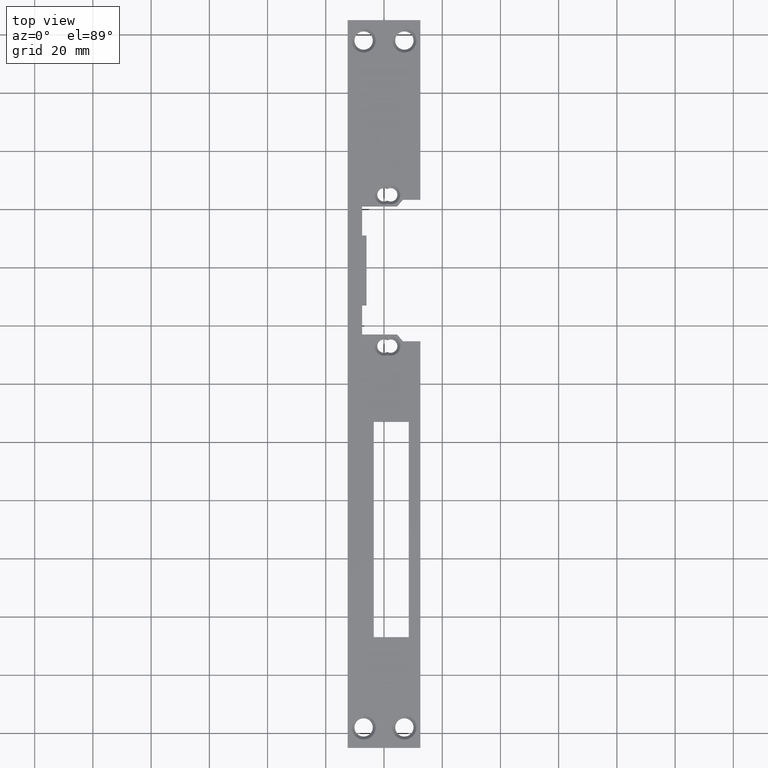
[diagram: clean part render]
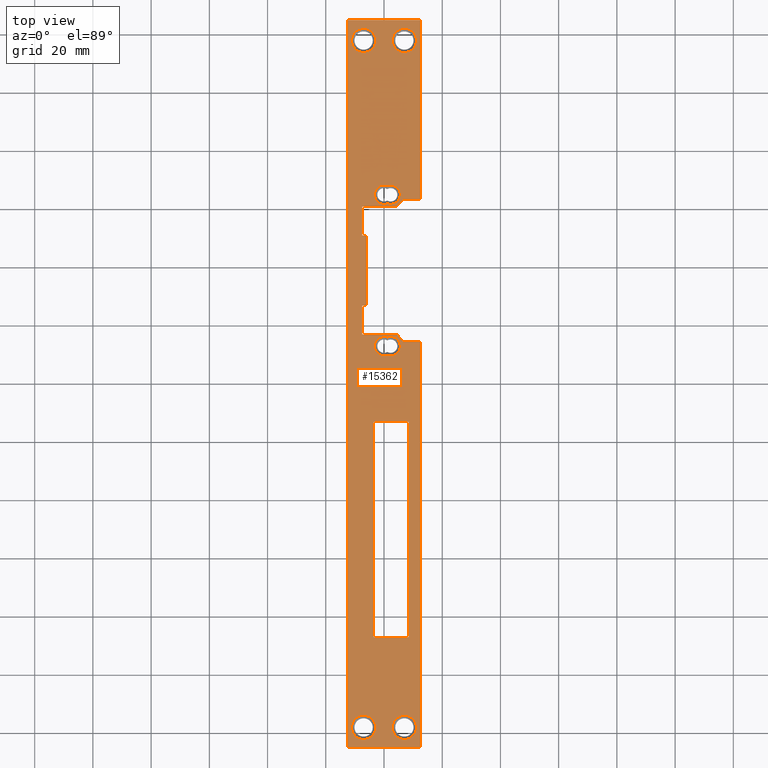
[diagram: same view with one face highlighted and labeled with its STEP entity id]
A machine part, top view. The second image highlights one B-rep face of the part: STEP entity #15362.
In plain terms, the highlighted planar face has unit normal (-0, 0, 1).
Its self-contained STEP definition (entity closure, byte-faithful):
#45 = VECTOR ( 'NONE', #15679, 1000.000000000000000 ) ;
#63 = ORIENTED_EDGE ( 'NONE', *, *, #1417, .F. ) ;
#214 = DIRECTION ( 'NONE',  ( 1.000000000000000000, 0.000000000000000000, 0.000000000000000000 ) ) ;
#242 = VERTEX_POINT ( 'NONE', #12705 ) ;
#277 = EDGE_CURVE ( 'NONE', #14139, #13764, #1704, .T. ) ;
#281 = EDGE_CURVE ( 'NONE', #6145, #14139, #935, .T. ) ;
#335 = EDGE_CURVE ( 'NONE', #14783, #13684, #7827, .T. ) ;
#388 = ORIENTED_EDGE ( 'NONE', *, *, #10455, .F. ) ;
#401 = CARTESIAN_POINT ( 'NONE',  ( -7.000000000000000000, -118.0000000000000000, 3.000000000000000000 ) ) ;
#411 = CARTESIAN_POINT ( 'NONE',  ( 4.500000000000031086, 16.99999999999996092, 3.000000000000000000 ) ) ;
#444 = CARTESIAN_POINT ( 'NONE',  ( -12.50000000000001599, 125.0000000000000000, 3.000000000000000000 ) ) ;
#484 = FACE_BOUND ( 'NONE', #6511, .T. ) ;
#505 = AXIS2_PLACEMENT_3D ( 'NONE', #8927, #1604, #11367 ) ;
#517 = CARTESIAN_POINT ( 'NONE',  ( 7.000000000000000000, -118.0000000000000000, 3.000000000000000000 ) ) ;
#518 = CARTESIAN_POINT ( 'NONE',  ( -7.500000000000023093, 60.99999999999996447, 3.000000000000000000 ) ) ;
#529 = ORIENTED_EDGE ( 'NONE', *, *, #335, .F. ) ;
#558 = EDGE_LOOP ( 'NONE', ( #8102, #13041, #14520 ) ) ;
#645 = CARTESIAN_POINT ( 'NONE',  ( 12.50000000000001599, -125.0000000000000284, 3.000000000000000000 ) ) ;
#650 = DIRECTION ( 'NONE',  ( 0.6481186295283569709, -0.7615393896958214670, 0.000000000000000000 ) ) ;
#764 = ORIENTED_EDGE ( 'NONE', *, *, #6211, .F. ) ;
#935 = CIRCLE ( 'NONE', #14532, 3.299999999999998046 ) ;
#963 = VECTOR ( 'NONE', #5611, 1000.000000000000000 ) ;
#1148 = DIRECTION ( 'NONE',  ( 1.000000000000000000, 0.000000000000000000, 0.000000000000000000 ) ) ;
#1181 = EDGE_CURVE ( 'NONE', #15734, #10715, #1321, .T. ) ;
#1183 = CARTESIAN_POINT ( 'NONE',  ( 12.49999999999998579, 125.0000000000000000, 3.000000000000000000 ) ) ;
#1191 = DIRECTION ( 'NONE',  ( -1.000000000000000000, -0.000000000000000000, -0.000000000000000000 ) ) ;
#1215 = DIRECTION ( 'NONE',  ( 0.000000000000000000, -0.000000000000000000, -1.000000000000000000 ) ) ;
#1321 = CIRCLE ( 'NONE', #10959, 4.150000000000013678 ) ;
#1417 = EDGE_CURVE ( 'NONE', #10002, #242, #13547, .T. ) ;
#1487 = EDGE_CURVE ( 'NONE', #11190, #4401, #2446, .T. ) ;
#1502 = CIRCLE ( 'NONE', #13837, 3.299999999999993161 ) ;
#1509 = EDGE_LOOP ( 'NONE', ( #9093, #4364, #12487, #8478, #3359, #4263, #6717, #9859, #9614, #63, #7880, #1585, #529, #388, #10326, #15286 ) ) ;
#1540 = DIRECTION ( 'NONE',  ( 0.000000000000000000, -0.000000000000000000, -1.000000000000000000 ) ) ;
#1585 = ORIENTED_EDGE ( 'NONE', *, *, #4452, .F. ) ;
#1604 = DIRECTION ( 'NONE',  ( 0.000000000000000000, -0.000000000000000000, -1.000000000000000000 ) ) ;
#1640 = DIRECTION ( 'NONE',  ( 1.000000000000000000, 0.000000000000000000, 0.000000000000000000 ) ) ;
#1647 = CIRCLE ( 'NONE', #13012, 4.150000000000013678 ) ;
#1704 = CIRCLE ( 'NONE', #5740, 3.299999999999998046 ) ;
#1788 = EDGE_CURVE ( 'NONE', #4420, #11190, #7795, .T. ) ;
#1794 = EDGE_CURVE ( 'NONE', #13764, #6145, #1502, .T. ) ;
#1833 = ORIENTED_EDGE ( 'NONE', *, *, #9348, .F. ) ;
#1859 = CARTESIAN_POINT ( 'NONE',  ( -3.499999999999977796, -87.00000000000002842, 3.000000000000000000 ) ) ;
#1877 = CARTESIAN_POINT ( 'NONE',  ( -12.50000000000001599, 125.0000000000000000, 3.000000000000000000 ) ) ;
#1897 = AXIS2_PLACEMENT_3D ( 'NONE', #11274, #7459, #2694 ) ;
#1974 = VERTEX_POINT ( 'NONE', #14996 ) ;
#2095 = CARTESIAN_POINT ( 'NONE',  ( 1.149999999999984812, 9.906862434355664604, 3.000000000000000000 ) ) ;
#2108 = CARTESIAN_POINT ( 'NONE',  ( 8.500000000000024869, -87.00000000000002842, 3.000000000000000000 ) ) ;
#2137 = EDGE_LOOP ( 'NONE', ( #12538, #14368 ) ) ;
#2143 = CARTESIAN_POINT ( 'NONE',  ( 1.149999999999976819, 68.09313756564426967, 3.000000000000000000 ) ) ;
#2280 = VERTEX_POINT ( 'NONE', #3303 ) ;
#2288 = ORIENTED_EDGE ( 'NONE', *, *, #4805, .T. ) ;
#2357 = VERTEX_POINT ( 'NONE', #12650 ) ;
#2446 = LINE ( 'NONE', #13386, #3594 ) ;
#2594 = CARTESIAN_POINT ( 'NONE',  ( 7.000000000000000000, -118.0000000000000000, 3.000000000000000000 ) ) ;
#2612 = LINE ( 'NONE', #5019, #3759 ) ;
#2687 = CARTESIAN_POINT ( 'NONE',  ( 8.500000000000015987, -13.00000000000003375, 3.000000000000000000 ) ) ;
#2694 = DIRECTION ( 'NONE',  ( 1.000000000000000000, 0.000000000000000000, 0.000000000000000000 ) ) ;
#2725 = LINE ( 'NONE', #4785, #45 ) ;
#2815 = DIRECTION ( 'NONE',  ( -1.000000000000000000, -0.000000000000000000, -0.000000000000000000 ) ) ;
#2888 = LINE ( 'NONE', #518, #963 ) ;
#2967 = DIRECTION ( 'NONE',  ( 1.000000000000000000, 0.000000000000000000, 0.000000000000000000 ) ) ;
#3217 = CARTESIAN_POINT ( 'NONE',  ( 5.599999999999981881, 12.99999999999996980, 3.000000000000000000 ) ) ;
#3303 = CARTESIAN_POINT ( 'NONE',  ( -7.500000000000023093, 60.99999999999996447, 3.000000000000000000 ) ) ;
#3359 = ORIENTED_EDGE ( 'NONE', *, *, #1487, .T. ) ;
#3362 = LINE ( 'NONE', #444, #9098 ) ;
#3377 = VECTOR ( 'NONE', #13202, 1000.000000000000000 ) ;
#3519 = VERTEX_POINT ( 'NONE', #11603 ) ;
#3594 = VECTOR ( 'NONE', #9591, 1000.000000000000000 ) ;
#3759 = VECTOR ( 'NONE', #9818, 1000.000000000000000 ) ;
#3863 = ORIENTED_EDGE ( 'NONE', *, *, #10928, .T. ) ;
#3899 = AXIS2_PLACEMENT_3D ( 'NONE', #5388, #14347, #7370 ) ;
#3909 = VERTEX_POINT ( 'NONE', #13466 ) ;
#3923 = DIRECTION ( 'NONE',  ( 1.000000000000000000, 0.000000000000000000, 0.000000000000000000 ) ) ;
#3971 = DIRECTION ( 'NONE',  ( 0.000000000000000000, -0.000000000000000000, -1.000000000000000000 ) ) ;
#4033 = LINE ( 'NONE', #14578, #4588 ) ;
#4124 = FACE_BOUND ( 'NONE', #2137, .T. ) ;
#4263 = ORIENTED_EDGE ( 'NONE', *, *, #12846, .T. ) ;
#4316 = CARTESIAN_POINT ( 'NONE',  ( -12.49999999999998579, -125.0000000000000284, 3.000000000000000000 ) ) ;
#4358 = CARTESIAN_POINT ( 'NONE',  ( 12.50000000000001776, 14.64999999999996838, 3.000000000000000000 ) ) ;
#4364 = ORIENTED_EDGE ( 'NONE', *, *, #4769, .T. ) ;
#4401 = VERTEX_POINT ( 'NONE', #645 ) ;
#4420 = VERTEX_POINT ( 'NONE', #1877 ) ;
#4452 = EDGE_CURVE ( 'NONE', #13684, #3519, #11044, .T. ) ;
#4498 = FACE_BOUND ( 'NONE', #14557, .T. ) ;
#4502 = CARTESIAN_POINT ( 'NONE',  ( 2.299999999999985167, 12.99999999999996980, 3.000000000000000000 ) ) ;
#4545 = EDGE_CURVE ( 'NONE', #10158, #9012, #13343, .T. ) ;
#4588 = VECTOR ( 'NONE', #7047, 1000.000000000000000 ) ;
#4698 = FACE_BOUND ( 'NONE', #12329, .T. ) ;
#4769 = EDGE_CURVE ( 'NONE', #8608, #11313, #7022, .T. ) ;
#4785 = CARTESIAN_POINT ( 'NONE',  ( -7.500000000000008882, 16.99999999999996803, 3.000000000000000000 ) ) ;
#4791 = CIRCLE ( 'NONE', #7274, 4.150000000000013678 ) ;
#4805 = EDGE_CURVE ( 'NONE', #9012, #10090, #11238, .T. ) ;
#4886 = EDGE_LOOP ( 'NONE', ( #7346, #3863 ) ) ;
#4953 = DIRECTION ( 'NONE',  ( -1.000000000000000000, 0.000000000000000000, 0.000000000000000000 ) ) ;
#5001 = DIRECTION ( 'NONE',  ( 1.000000000000000000, 0.000000000000000000, 0.000000000000000000 ) ) ;
#5011 = VERTEX_POINT ( 'NONE', #2108 ) ;
#5017 = ORIENTED_EDGE ( 'NONE', *, *, #6088, .F. ) ;
#5019 = CARTESIAN_POINT ( 'NONE',  ( 12.50000000000001776, 63.34999999999995879, 3.000000000000000000 ) ) ;
#5081 = CARTESIAN_POINT ( 'NONE',  ( 4.500000000000016875, 60.99999999999997868, 3.000000000000000000 ) ) ;
#5090 = FACE_BOUND ( 'NONE', #5362, .T. ) ;
#5106 = LINE ( 'NONE', #10842, #3377 ) ;
#5155 = CARTESIAN_POINT ( 'NONE',  ( -1.561251128379126385E-14, 64.99999999999995737, 3.000000000000000000 ) ) ;
#5272 = CARTESIAN_POINT ( 'NONE',  ( -7.500000000000016875, 50.99999999999996447, 3.000000000000000000 ) ) ;
#5341 = AXIS2_PLACEMENT_3D ( 'NONE', #7477, #14823, #8805 ) ;
#5362 = EDGE_LOOP ( 'NONE', ( #9555, #15762 ) ) ;
#5380 = VERTEX_POINT ( 'NONE', #9203 ) ;
#5388 = CARTESIAN_POINT ( 'NONE',  ( 7.000000000000000000, 118.0000000000000000, 3.000000000000000000 ) ) ;
#5462 = CARTESIAN_POINT ( 'NONE',  ( -11.15000000000001457, 118.0000000000000000, 3.000000000000000000 ) ) ;
#5611 = DIRECTION ( 'NONE',  ( 6.071532165918823844E-16, -1.000000000000000000, 0.000000000000000000 ) ) ;
#5639 = VERTEX_POINT ( 'NONE', #2687 ) ;
#5716 = CARTESIAN_POINT ( 'NONE',  ( 12.49999999999998579, 125.0000000000000000, 3.000000000000000000 ) ) ;
#5740 = AXIS2_PLACEMENT_3D ( 'NONE', #6612, #11463, #6513 ) ;
#5749 = DIRECTION ( 'NONE',  ( 0.000000000000000000, -0.000000000000000000, -1.000000000000000000 ) ) ;
#5750 = VECTOR ( 'NONE', #15023, 1000.000000000000000 ) ;
#5885 = CIRCLE ( 'NONE', #505, 4.150000000000013678 ) ;
#5991 = DIRECTION ( 'NONE',  ( -1.249000902703301108E-16, 1.000000000000000000, -0.000000000000000000 ) ) ;
#6088 = EDGE_CURVE ( 'NONE', #5011, #5639, #5106, .T. ) ;
#6135 = CIRCLE ( 'NONE', #11447, 4.150000000000015454 ) ;
#6145 = VERTEX_POINT ( 'NONE', #2143 ) ;
#6181 = DIRECTION ( 'NONE',  ( 1.000000000000000000, 0.000000000000000000, 0.000000000000000000 ) ) ;
#6211 = EDGE_CURVE ( 'NONE', #5639, #7514, #9285, .T. ) ;
#6319 = CARTESIAN_POINT ( 'NONE',  ( -3.499999999999977796, -87.00000000000002842, 3.000000000000000000 ) ) ;
#6511 = EDGE_LOOP ( 'NONE', ( #2288, #15339, #13046 ) ) ;
#6513 = DIRECTION ( 'NONE',  ( 1.000000000000000000, 0.000000000000000000, 0.000000000000000000 ) ) ;
#6609 = CARTESIAN_POINT ( 'NONE',  ( -7.000000000000000000, 118.0000000000000000, 3.000000000000000000 ) ) ;
#6612 = CARTESIAN_POINT ( 'NONE',  ( 2.299999999999985167, 64.99999999999995737, 3.000000000000000000 ) ) ;
#6626 = EDGE_CURVE ( 'NONE', #8608, #15139, #2612, .T. ) ;
#6712 = EDGE_CURVE ( 'NONE', #11313, #4420, #3362, .T. ) ;
#6717 = ORIENTED_EDGE ( 'NONE', *, *, #9253, .F. ) ;
#6811 = CARTESIAN_POINT ( 'NONE',  ( 6.500000000000017764, 63.34999999999995879, 3.000000000000000000 ) ) ;
#6836 = AXIS2_PLACEMENT_3D ( 'NONE', #517, #12617, #13938 ) ;
#6878 = DIRECTION ( 'NONE',  ( 0.000000000000000000, -0.000000000000000000, -1.000000000000000000 ) ) ;
#6995 = CIRCLE ( 'NONE', #14652, 3.299999999999996714 ) ;
#7022 = LINE ( 'NONE', #1183, #8584 ) ;
#7047 = DIRECTION ( 'NONE',  ( 1.000000000000000000, 0.000000000000000000, 0.000000000000000000 ) ) ;
#7186 = CARTESIAN_POINT ( 'NONE',  ( 2.299999999999985167, 12.99999999999996980, 3.000000000000000000 ) ) ;
#7208 = EDGE_CURVE ( 'NONE', #1974, #2357, #14230, .T. ) ;
#7213 = EDGE_CURVE ( 'NONE', #7514, #7488, #15386, .T. ) ;
#7263 = LINE ( 'NONE', #9302, #14124 ) ;
#7274 = AXIS2_PLACEMENT_3D ( 'NONE', #14541, #8480, #1148 ) ;
#7346 = ORIENTED_EDGE ( 'NONE', *, *, #1181, .T. ) ;
#7358 = DIRECTION ( 'NONE',  ( 1.249000902703301108E-16, -1.000000000000000000, 0.000000000000000000 ) ) ;
#7370 = DIRECTION ( 'NONE',  ( 1.000000000000000000, 0.000000000000000000, 0.000000000000000000 ) ) ;
#7455 = EDGE_CURVE ( 'NONE', #15139, #14530, #15082, .T. ) ;
#7459 = DIRECTION ( 'NONE',  ( 0.000000000000000000, -0.000000000000000000, -1.000000000000000000 ) ) ;
#7477 = CARTESIAN_POINT ( 'NONE',  ( 0.000000000000000000, 0.000000000000000000, 3.000000000000000000 ) ) ;
#7488 = VERTEX_POINT ( 'NONE', #1859 ) ;
#7514 = VERTEX_POINT ( 'NONE', #9445 ) ;
#7795 = LINE ( 'NONE', #14657, #13532 ) ;
#7805 = DIRECTION ( 'NONE',  ( 7.453889935837844216E-17, -1.000000000000000000, 0.000000000000000000 ) ) ;
#7827 = LINE ( 'NONE', #5272, #8403 ) ;
#7837 = DIRECTION ( 'NONE',  ( 1.000000000000000000, 0.000000000000000000, 0.000000000000000000 ) ) ;
#7880 = ORIENTED_EDGE ( 'NONE', *, *, #9777, .F. ) ;
#7894 = CARTESIAN_POINT ( 'NONE',  ( -7.500000000000009770, 26.99999999999996803, 3.000000000000000000 ) ) ;
#8099 = CARTESIAN_POINT ( 'NONE',  ( -7.500000000000009770, 26.99999999999996803, 3.000000000000000000 ) ) ;
#8102 = ORIENTED_EDGE ( 'NONE', *, *, #1794, .T. ) ;
#8403 = VECTOR ( 'NONE', #13823, 1000.000000000000000 ) ;
#8478 = ORIENTED_EDGE ( 'NONE', *, *, #1788, .T. ) ;
#8480 = DIRECTION ( 'NONE',  ( 0.000000000000000000, -0.000000000000000000, -1.000000000000000000 ) ) ;
#8521 = CARTESIAN_POINT ( 'NONE',  ( -3.499999999999982681, -13.00000000000003375, 3.000000000000000000 ) ) ;
#8584 = VECTOR ( 'NONE', #5991, 1000.000000000000000 ) ;
#8608 = VERTEX_POINT ( 'NONE', #15475 ) ;
#8635 = LINE ( 'NONE', #6319, #10322 ) ;
#8674 = VERTEX_POINT ( 'NONE', #4358 ) ;
#8731 = CARTESIAN_POINT ( 'NONE',  ( -2.849999999999986322, -118.0000000000000000, 3.000000000000000000 ) ) ;
#8740 = CARTESIAN_POINT ( 'NONE',  ( 4.500000000000016875, 60.99999999999997868, 3.000000000000000000 ) ) ;
#8789 = VECTOR ( 'NONE', #9136, 1000.000000000000000 ) ;
#8805 = DIRECTION ( 'NONE',  ( 1.000000000000000000, 0.000000000000000000, 0.000000000000000000 ) ) ;
#8927 = CARTESIAN_POINT ( 'NONE',  ( -7.000000000000000000, 118.0000000000000000, 3.000000000000000000 ) ) ;
#8962 = EDGE_CURVE ( 'NONE', #14530, #2280, #15487, .T. ) ;
#9012 = VERTEX_POINT ( 'NONE', #11223 ) ;
#9093 = ORIENTED_EDGE ( 'NONE', *, *, #6626, .F. ) ;
#9098 = VECTOR ( 'NONE', #2815, 1000.000000000000000 ) ;
#9136 = DIRECTION ( 'NONE',  ( -1.249000902703301108E-16, 1.000000000000000000, -0.000000000000000000 ) ) ;
#9203 = CARTESIAN_POINT ( 'NONE',  ( 11.15000000000001457, 118.0000000000000000, 3.000000000000000000 ) ) ;
#9217 = CARTESIAN_POINT ( 'NONE',  ( -11.15000000000001457, -118.0000000000000000, 3.000000000000000000 ) ) ;
#9253 = EDGE_CURVE ( 'NONE', #10365, #8674, #4033, .T. ) ;
#9285 = LINE ( 'NONE', #8521, #14646 ) ;
#9302 = CARTESIAN_POINT ( 'NONE',  ( 4.500000000000031086, 16.99999999999996092, 3.000000000000000000 ) ) ;
#9348 = EDGE_CURVE ( 'NONE', #7488, #5011, #8635, .T. ) ;
#9445 = CARTESIAN_POINT ( 'NONE',  ( -3.499999999999982681, -13.00000000000003375, 3.000000000000000000 ) ) ;
#9555 = ORIENTED_EDGE ( 'NONE', *, *, #13265, .T. ) ;
#9591 = DIRECTION ( 'NONE',  ( 1.000000000000000000, 0.000000000000000000, 0.000000000000000000 ) ) ;
#9614 = ORIENTED_EDGE ( 'NONE', *, *, #13989, .F. ) ;
#9777 = EDGE_CURVE ( 'NONE', #3519, #10002, #11296, .T. ) ;
#9818 = DIRECTION ( 'NONE',  ( -1.000000000000000000, 0.000000000000000000, 0.000000000000000000 ) ) ;
#9826 = ORIENTED_EDGE ( 'NONE', *, *, #10987, .T. ) ;
#9859 = ORIENTED_EDGE ( 'NONE', *, *, #11937, .F. ) ;
#9976 = VERTEX_POINT ( 'NONE', #5462 ) ;
#10002 = VERTEX_POINT ( 'NONE', #8099 ) ;
#10090 = VERTEX_POINT ( 'NONE', #3217 ) ;
#10158 = VERTEX_POINT ( 'NONE', #2095 ) ;
#10225 = AXIS2_PLACEMENT_3D ( 'NONE', #2594, #14816, #5001 ) ;
#10275 = VECTOR ( 'NONE', #15194, 1000.000000000000000 ) ;
#10283 = CARTESIAN_POINT ( 'NONE',  ( 2.299999999999985167, 64.99999999999995737, 3.000000000000000000 ) ) ;
#10322 = VECTOR ( 'NONE', #214, 1000.000000000000000 ) ;
#10326 = ORIENTED_EDGE ( 'NONE', *, *, #8962, .F. ) ;
#10365 = VERTEX_POINT ( 'NONE', #11221 ) ;
#10455 = EDGE_CURVE ( 'NONE', #2280, #14783, #2888, .T. ) ;
#10661 = DIRECTION ( 'NONE',  ( -0.6481186295283607457, -0.7615393896958182474, 0.000000000000000000 ) ) ;
#10715 = VERTEX_POINT ( 'NONE', #9217 ) ;
#10842 = CARTESIAN_POINT ( 'NONE',  ( 8.500000000000017764, -23.00000000000003553, 3.000000000000000000 ) ) ;
#10928 = EDGE_CURVE ( 'NONE', #10715, #15734, #4791, .T. ) ;
#10959 = AXIS2_PLACEMENT_3D ( 'NONE', #401, #1540, #1640 ) ;
#10987 = EDGE_CURVE ( 'NONE', #14206, #5380, #6135, .T. ) ;
#11016 = EDGE_CURVE ( 'NONE', #2357, #1974, #11276, .T. ) ;
#11026 = CARTESIAN_POINT ( 'NONE',  ( 2.849999999999985434, 118.0000000000000000, 3.000000000000000000 ) ) ;
#11044 = LINE ( 'NONE', #15603, #15055 ) ;
#11190 = VERTEX_POINT ( 'NONE', #4316 ) ;
#11221 = CARTESIAN_POINT ( 'NONE',  ( 6.500000000000017764, 14.64999999999996838, 3.000000000000000000 ) ) ;
#11223 = CARTESIAN_POINT ( 'NONE',  ( 1.149999999999984812, 16.09313756564427322, 3.000000000000000000 ) ) ;
#11238 = CIRCLE ( 'NONE', #11729, 3.299999999999996714 ) ;
#11274 = CARTESIAN_POINT ( 'NONE',  ( -1.561251128379126385E-14, 12.99999999999996980, 3.000000000000000000 ) ) ;
#11276 = CIRCLE ( 'NONE', #10225, 4.150000000000015454 ) ;
#11296 = LINE ( 'NONE', #12225, #15508 ) ;
#11313 = VERTEX_POINT ( 'NONE', #5716 ) ;
#11367 = DIRECTION ( 'NONE',  ( 1.000000000000000000, 0.000000000000000000, 0.000000000000000000 ) ) ;
#11384 = CARTESIAN_POINT ( 'NONE',  ( 12.49999999999998579, 125.0000000000000000, 3.000000000000000000 ) ) ;
#11447 = AXIS2_PLACEMENT_3D ( 'NONE', #12269, #13489, #6181 ) ;
#11449 = CIRCLE ( 'NONE', #3899, 4.150000000000015454 ) ;
#11463 = DIRECTION ( 'NONE',  ( 0.000000000000000000, -0.000000000000000000, -1.000000000000000000 ) ) ;
#11479 = CARTESIAN_POINT ( 'NONE',  ( -3.499999999999982681, -23.00000000000003553, 3.000000000000000000 ) ) ;
#11538 = VERTEX_POINT ( 'NONE', #411 ) ;
#11603 = CARTESIAN_POINT ( 'NONE',  ( -6.000000000000011546, 26.99999999999996803, 3.000000000000000000 ) ) ;
#11729 = AXIS2_PLACEMENT_3D ( 'NONE', #4502, #5749, #14281 ) ;
#11836 = VECTOR ( 'NONE', #10661, 1000.000000000000114 ) ;
#11874 = DIRECTION ( 'NONE',  ( 2.891205793294679312E-16, -1.000000000000000000, 0.000000000000000000 ) ) ;
#11937 = EDGE_CURVE ( 'NONE', #11538, #10365, #7263, .T. ) ;
#11966 = FACE_OUTER_BOUND ( 'NONE', #1509, .T. ) ;
#12022 = LINE ( 'NONE', #11384, #8789 ) ;
#12225 = CARTESIAN_POINT ( 'NONE',  ( -6.000000000000011546, 26.99999999999996803, 3.000000000000000000 ) ) ;
#12269 = CARTESIAN_POINT ( 'NONE',  ( 7.000000000000000000, 118.0000000000000000, 3.000000000000000000 ) ) ;
#12329 = EDGE_LOOP ( 'NONE', ( #14244, #764, #5017, #1833 ) ) ;
#12375 = EDGE_CURVE ( 'NONE', #5380, #14206, #11449, .T. ) ;
#12487 = ORIENTED_EDGE ( 'NONE', *, *, #6712, .T. ) ;
#12538 = ORIENTED_EDGE ( 'NONE', *, *, #7208, .T. ) ;
#12617 = DIRECTION ( 'NONE',  ( 0.000000000000000000, -0.000000000000000000, -1.000000000000000000 ) ) ;
#12650 = CARTESIAN_POINT ( 'NONE',  ( 2.849999999999985434, -118.0000000000000000, 3.000000000000000000 ) ) ;
#12705 = CARTESIAN_POINT ( 'NONE',  ( -7.500000000000008882, 16.99999999999996803, 3.000000000000000000 ) ) ;
#12735 = FACE_BOUND ( 'NONE', #558, .T. ) ;
#12846 = EDGE_CURVE ( 'NONE', #4401, #8674, #12022, .T. ) ;
#12920 = CARTESIAN_POINT ( 'NONE',  ( 6.500000000000017764, 63.34999999999995879, 3.000000000000000000 ) ) ;
#13012 = AXIS2_PLACEMENT_3D ( 'NONE', #6609, #15146, #7837 ) ;
#13024 = CARTESIAN_POINT ( 'NONE',  ( -7.500000000000016875, 50.99999999999996447, 3.000000000000000000 ) ) ;
#13041 = ORIENTED_EDGE ( 'NONE', *, *, #281, .T. ) ;
#13046 = ORIENTED_EDGE ( 'NONE', *, *, #4545, .T. ) ;
#13202 = DIRECTION ( 'NONE',  ( -1.084202172485504681E-16, 1.000000000000000000, -0.000000000000000000 ) ) ;
#13237 = CARTESIAN_POINT ( 'NONE',  ( -6.000000000000018652, 50.99999999999996447, 3.000000000000000000 ) ) ;
#13265 = EDGE_CURVE ( 'NONE', #3909, #9976, #5885, .T. ) ;
#13343 = CIRCLE ( 'NONE', #1897, 3.299999999999997158 ) ;
#13386 = CARTESIAN_POINT ( 'NONE',  ( -12.49999999999998579, -125.0000000000000284, 3.000000000000000000 ) ) ;
#13466 = CARTESIAN_POINT ( 'NONE',  ( -2.849999999999986322, 118.0000000000000000, 3.000000000000000000 ) ) ;
#13489 = DIRECTION ( 'NONE',  ( 0.000000000000000000, -0.000000000000000000, -1.000000000000000000 ) ) ;
#13532 = VECTOR ( 'NONE', #7358, 1000.000000000000000 ) ;
#13542 = PLANE ( 'NONE',  #5341 ) ;
#13547 = LINE ( 'NONE', #7894, #10275 ) ;
#13617 = CARTESIAN_POINT ( 'NONE',  ( 1.149999999999977041, 61.90686243435565217, 3.000000000000000000 ) ) ;
#13658 = ORIENTED_EDGE ( 'NONE', *, *, #12375, .T. ) ;
#13684 = VERTEX_POINT ( 'NONE', #13237 ) ;
#13764 = VERTEX_POINT ( 'NONE', #13617 ) ;
#13823 = DIRECTION ( 'NONE',  ( 1.000000000000000000, 0.000000000000000000, 0.000000000000000000 ) ) ;
#13837 = AXIS2_PLACEMENT_3D ( 'NONE', #5155, #3971, #3923 ) ;
#13938 = DIRECTION ( 'NONE',  ( 1.000000000000000000, 0.000000000000000000, 0.000000000000000000 ) ) ;
#13989 = EDGE_CURVE ( 'NONE', #242, #11538, #2725, .T. ) ;
#14056 = FACE_BOUND ( 'NONE', #4886, .T. ) ;
#14124 = VECTOR ( 'NONE', #650, 1000.000000000000227 ) ;
#14139 = VERTEX_POINT ( 'NONE', #14773 ) ;
#14206 = VERTEX_POINT ( 'NONE', #11026 ) ;
#14230 = CIRCLE ( 'NONE', #6836, 4.150000000000015454 ) ;
#14244 = ORIENTED_EDGE ( 'NONE', *, *, #7213, .F. ) ;
#14281 = DIRECTION ( 'NONE',  ( 1.000000000000000000, 1.051347561198065993E-15, 0.000000000000000000 ) ) ;
#14347 = DIRECTION ( 'NONE',  ( 0.000000000000000000, -0.000000000000000000, -1.000000000000000000 ) ) ;
#14368 = ORIENTED_EDGE ( 'NONE', *, *, #11016, .T. ) ;
#14520 = ORIENTED_EDGE ( 'NONE', *, *, #277, .T. ) ;
#14530 = VERTEX_POINT ( 'NONE', #5081 ) ;
#14532 = AXIS2_PLACEMENT_3D ( 'NONE', #10283, #6878, #2967 ) ;
#14541 = CARTESIAN_POINT ( 'NONE',  ( -7.000000000000000000, -118.0000000000000000, 3.000000000000000000 ) ) ;
#14557 = EDGE_LOOP ( 'NONE', ( #13658, #9826 ) ) ;
#14578 = CARTESIAN_POINT ( 'NONE',  ( 6.500000000000017764, 14.64999999999996838, 3.000000000000000000 ) ) ;
#14646 = VECTOR ( 'NONE', #1191, 1000.000000000000000 ) ;
#14652 = AXIS2_PLACEMENT_3D ( 'NONE', #7186, #1215, #14719 ) ;
#14657 = CARTESIAN_POINT ( 'NONE',  ( -12.50000000000001599, 125.0000000000000000, 3.000000000000000000 ) ) ;
#14719 = DIRECTION ( 'NONE',  ( 1.000000000000000000, 0.000000000000000000, 0.000000000000000000 ) ) ;
#14773 = CARTESIAN_POINT ( 'NONE',  ( 5.599999999999981881, 64.99999999999995737, 3.000000000000000000 ) ) ;
#14783 = VERTEX_POINT ( 'NONE', #13024 ) ;
#14816 = DIRECTION ( 'NONE',  ( 0.000000000000000000, -0.000000000000000000, -1.000000000000000000 ) ) ;
#14823 = DIRECTION ( 'NONE',  ( -0.000000000000000000, 0.000000000000000000, 1.000000000000000000 ) ) ;
#14996 = CARTESIAN_POINT ( 'NONE',  ( 11.15000000000001457, -118.0000000000000000, 3.000000000000000000 ) ) ;
#15018 = VECTOR ( 'NONE', #7805, 1000.000000000000000 ) ;
#15023 = DIRECTION ( 'NONE',  ( -1.000000000000000000, -1.156482317317867583E-15, 0.000000000000000000 ) ) ;
#15026 = EDGE_CURVE ( 'NONE', #9976, #3909, #1647, .T. ) ;
#15055 = VECTOR ( 'NONE', #11874, 1000.000000000000000 ) ;
#15082 = LINE ( 'NONE', #12920, #11836 ) ;
#15139 = VERTEX_POINT ( 'NONE', #6811 ) ;
#15146 = DIRECTION ( 'NONE',  ( 0.000000000000000000, -0.000000000000000000, -1.000000000000000000 ) ) ;
#15194 = DIRECTION ( 'NONE',  ( 8.673617379884034239E-17, -1.000000000000000000, 0.000000000000000000 ) ) ;
#15195 = EDGE_CURVE ( 'NONE', #10090, #10158, #6995, .T. ) ;
#15286 = ORIENTED_EDGE ( 'NONE', *, *, #7455, .F. ) ;
#15339 = ORIENTED_EDGE ( 'NONE', *, *, #15195, .T. ) ;
#15362 = ADVANCED_FACE ( 'NONE', ( #4698, #12735, #484, #11966, #4498, #5090, #4124, #14056 ), #13542, .T. ) ;
#15386 = LINE ( 'NONE', #11479, #15018 ) ;
#15475 = CARTESIAN_POINT ( 'NONE',  ( 12.50000000000001776, 63.34999999999995879, 3.000000000000000000 ) ) ;
#15487 = LINE ( 'NONE', #8740, #5750 ) ;
#15508 = VECTOR ( 'NONE', #4953, 1000.000000000000000 ) ;
#15603 = CARTESIAN_POINT ( 'NONE',  ( -6.000000000000018652, 50.99999999999996447, 3.000000000000000000 ) ) ;
#15679 = DIRECTION ( 'NONE',  ( 1.000000000000000000, -5.782411586589337917E-16, 0.000000000000000000 ) ) ;
#15734 = VERTEX_POINT ( 'NONE', #8731 ) ;
#15762 = ORIENTED_EDGE ( 'NONE', *, *, #15026, .T. ) ;